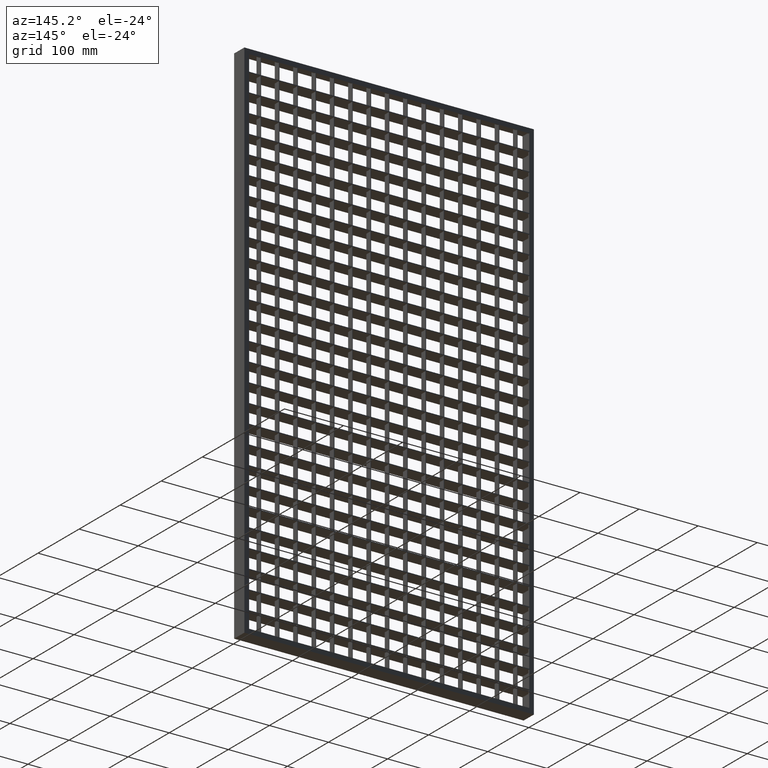
[diagram: clean part render]
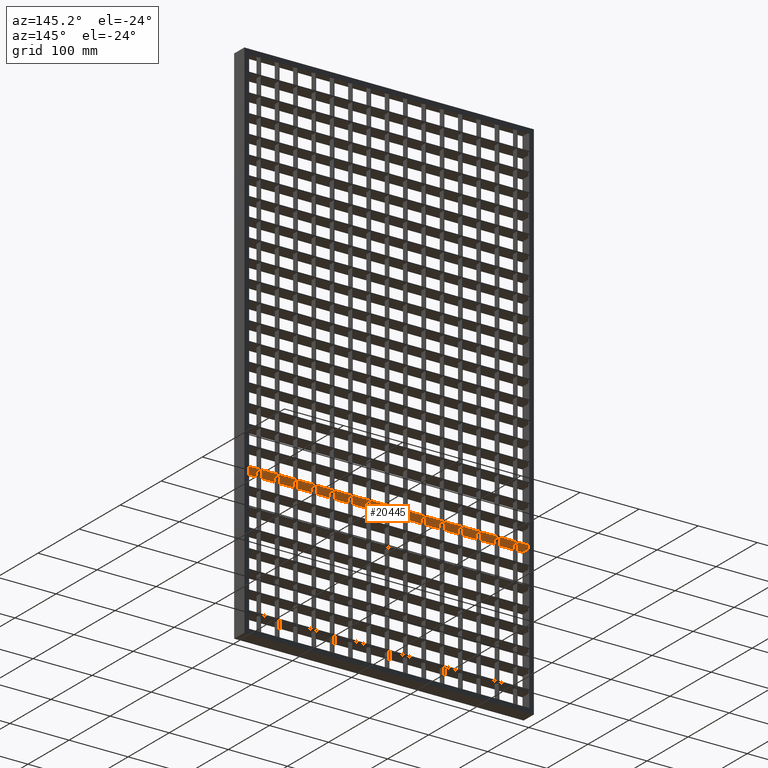
[diagram: same view with one face highlighted and labeled with its STEP entity id]
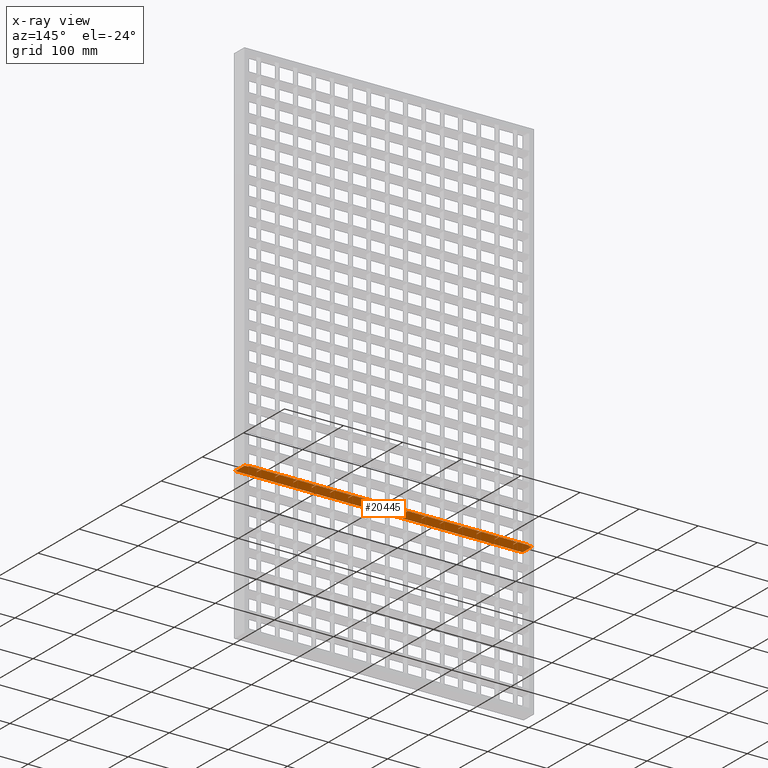
[diagram: x-ray of the same camera — body ghosted, the highlighted face saturated]
A machine part, auxiliary view. The second image highlights one B-rep face of the part: STEP entity #20445.
The next image is the same camera in x-ray: the body ghosted, the highlighted face saturated — about 0% of this face is hidden behind the body in this view.
In plain terms, the highlighted planar face has unit normal (0, 0, 1).
Its self-contained STEP definition (entity closure, byte-faithful):
#31 = ORIENTED_EDGE ( 'NONE', *, *, #40017, .T. ) ;
#145 = VERTEX_POINT ( 'NONE', #28036 ) ;
#261 = VECTOR ( 'NONE', #46870, 1000.000000000000000 ) ;
#339 = VECTOR ( 'NONE', #43882, 1000.000000000000000 ) ;
#489 = EDGE_CURVE ( 'NONE', #10559, #16109, #40078, .T. ) ;
#508 = CARTESIAN_POINT ( 'NONE',  ( 2.000000000000002700, 10.50000000000000500, -634.7499999999995500 ) ) ;
#586 = CARTESIAN_POINT ( 'NONE',  ( 58.50000000000000000, 2.500000000000000400, -634.7499999999995500 ) ) ;
#625 = VECTOR ( 'NONE', #13529, 1000.000000000000000 ) ;
#934 = LINE ( 'NONE', #62501, #4671 ) ;
#999 = VERTEX_POINT ( 'NONE', #28316 ) ;
#1050 = DIRECTION ( 'NONE',  ( -0.0000000000000000000, 1.000000000000000000, 0.0000000000000000000 ) ) ;
#1082 = CARTESIAN_POINT ( 'NONE',  ( 513.0449595727363900, 2.500000000000142600, -634.7499999999995500 ) ) ;
#1269 = CARTESIAN_POINT ( 'NONE',  ( 276.4999999999999400, 2.500000000000000900, -634.7499999999995500 ) ) ;
#1292 = CARTESIAN_POINT ( 'NONE',  ( 337.5000000000000000, 2.500000000000000400, -634.7499999999995500 ) ) ;
#1347 = FACE_OUTER_BOUND ( 'NONE', #18219, .T. ) ;
#1426 = DIRECTION ( 'NONE',  ( -1.000000000000000000, 4.336808689942013800E-016, 0.0000000000000000000 ) ) ;
#1573 = VERTEX_POINT ( 'NONE', #53525 ) ;
#1609 = LINE ( 'NONE', #26082, #10629 ) ;
#1724 = DIRECTION ( 'NONE',  ( 0.0000000000000000000, -1.000000000000000000, 0.0000000000000000000 ) ) ;
#1812 = CARTESIAN_POINT ( 'NONE',  ( 337.5000000000000000, 12.50000000000000000, -634.7499999999995500 ) ) ;
#1821 = VECTOR ( 'NONE', #58702, 1000.000000000000000 ) ;
#1916 = VERTEX_POINT ( 'NONE', #55414 ) ;
#2090 = VERTEX_POINT ( 'NONE', #9254 ) ;
#2302 = CARTESIAN_POINT ( 'NONE',  ( 59.50000000000000000, 2.500000000000000900, -634.7499999999995500 ) ) ;
#2389 = CARTESIAN_POINT ( 'NONE',  ( 120.5000000000000000, 12.50000000000003600, -634.7499999999995500 ) ) ;
#2700 = DIRECTION ( 'NONE',  ( 0.0000000000000000000, -1.000000000000000000, 0.0000000000000000000 ) ) ;
#2735 = VECTOR ( 'NONE', #23948, 1000.000000000000000 ) ;
#2771 = DIRECTION ( 'NONE',  ( 1.000000000000000000, 4.336808689942013800E-016, -0.0000000000000000000 ) ) ;
#2812 = EDGE_CURVE ( 'NONE', #61285, #7169, #42034, .T. ) ;
#2828 = VERTEX_POINT ( 'NONE', #33714 ) ;
#2969 = CARTESIAN_POINT ( 'NONE',  ( 513.0449595727363900, 2.500000000000116800, -634.7499999999995500 ) ) ;
#3082 = ORIENTED_EDGE ( 'NONE', *, *, #18359, .T. ) ;
#3400 = VERTEX_POINT ( 'NONE', #20003 ) ;
#3572 = VECTOR ( 'NONE', #9643, 1000.000000000000000 ) ;
#3797 = CARTESIAN_POINT ( 'NONE',  ( 368.5000000000000600, 12.50000000000000000, -634.7499999999995500 ) ) ;
#3834 = DIRECTION ( 'NONE',  ( -1.000000000000000000, -3.061616997868382600E-016, 0.0000000000000000000 ) ) ;
#3842 = CARTESIAN_POINT ( 'NONE',  ( 461.5000000000000000, 2.500000000000000400, -634.7499999999995500 ) ) ;
#3903 = VERTEX_POINT ( 'NONE', #39174 ) ;
#3993 = DIRECTION ( 'NONE',  ( -0.0000000000000000000, 1.000000000000000000, 0.0000000000000000000 ) ) ;
#4161 = DIRECTION ( 'NONE',  ( -0.0000000000000000000, 1.000000000000000000, 0.0000000000000000000 ) ) ;
#4193 = ORIENTED_EDGE ( 'NONE', *, *, #35667, .T. ) ;
#4349 = LINE ( 'NONE', #14969, #41371 ) ;
#4506 = CARTESIAN_POINT ( 'NONE',  ( 338.5000000000000000, 2.500000000000000000, -634.7499999999995500 ) ) ;
#4671 = VECTOR ( 'NONE', #4161, 1000.000000000000000 ) ;
#4676 = CARTESIAN_POINT ( 'NONE',  ( 488.0000000000000600, 10.50000000000000500, -634.7499999999995500 ) ) ;
#4735 = CARTESIAN_POINT ( 'NONE',  ( 513.0449595727363900, 12.50000000000015500, -634.7499999999995500 ) ) ;
#4770 = CARTESIAN_POINT ( 'NONE',  ( 430.5000000000000000, 2.500000000000000400, -634.7499999999995500 ) ) ;
#5234 = VECTOR ( 'NONE', #18970, 1000.000000000000000 ) ;
#5411 = DIRECTION ( 'NONE',  ( 0.0000000000000000000, -1.000000000000000000, 0.0000000000000000000 ) ) ;
#5534 = CARTESIAN_POINT ( 'NONE',  ( 482.0000000000001100, 10.50000000000036400, -634.7499999999995500 ) ) ;
#5599 = CARTESIAN_POINT ( 'NONE',  ( 368.5000000000000600, -12.49999999999984500, -634.7499999999995500 ) ) ;
#5625 = CARTESIAN_POINT ( 'NONE',  ( 244.5000000000000000, 12.50000000000007300, -634.7499999999995500 ) ) ;
#5653 = LINE ( 'NONE', #24143, #21525 ) ;
#5667 = VERTEX_POINT ( 'NONE', #14138 ) ;
#6097 = DIRECTION ( 'NONE',  ( 1.000000000000000000, 4.336808689942013800E-016, -0.0000000000000000000 ) ) ;
#6332 = VECTOR ( 'NONE', #54608, 1000.000000000000000 ) ;
#6730 = ORIENTED_EDGE ( 'NONE', *, *, #489, .F. ) ;
#6783 = CARTESIAN_POINT ( 'NONE',  ( 275.4999999999999400, -12.49999999999984500, -634.7499999999995500 ) ) ;
#6804 = VECTOR ( 'NONE', #34782, 1000.000000000000000 ) ;
#6838 = LINE ( 'NONE', #47088, #21173 ) ;
#7063 = LINE ( 'NONE', #49556, #1821 ) ;
#7104 = CARTESIAN_POINT ( 'NONE',  ( 488.0000000000000600, -12.49999999999984500, -634.7499999999995500 ) ) ;
#7169 = VERTEX_POINT ( 'NONE', #11757 ) ;
#7326 = ORIENTED_EDGE ( 'NONE', *, *, #37991, .F. ) ;
#7350 = EDGE_CURVE ( 'NONE', #11879, #9787, #17790, .T. ) ;
#7415 = CARTESIAN_POINT ( 'NONE',  ( 461.5000000000000000, -12.49999999999984500, -634.7499999999995500 ) ) ;
#7461 = LINE ( 'NONE', #35555, #52842 ) ;
#7640 = CARTESIAN_POINT ( 'NONE',  ( 307.5000000000000000, -12.49999999999984500, -634.7499999999995500 ) ) ;
#7963 = VERTEX_POINT ( 'NONE', #13502 ) ;
#8011 = CARTESIAN_POINT ( 'NONE',  ( 7.999999999999992900, 10.50000000000000500, -634.7499999999995500 ) ) ;
#8394 = VECTOR ( 'NONE', #57365, 1000.000000000000000 ) ;
#8484 = LINE ( 'NONE', #36030, #50132 ) ;
#8504 = VERTEX_POINT ( 'NONE', #14287 ) ;
#8583 = VERTEX_POINT ( 'NONE', #28876 ) ;
#8961 = VECTOR ( 'NONE', #10696, 1000.000000000000000 ) ;
#8995 = VERTEX_POINT ( 'NONE', #51679 ) ;
#9001 = LINE ( 'NONE', #7415, #20356 ) ;
#9040 = ORIENTED_EDGE ( 'NONE', *, *, #27590, .F. ) ;
#9061 = ORIENTED_EDGE ( 'NONE', *, *, #60447, .T. ) ;
#9120 = ORIENTED_EDGE ( 'NONE', *, *, #9369, .T. ) ;
#9253 = CARTESIAN_POINT ( 'NONE',  ( 8.000000000000007100, 12.50000000000000000, -634.7499999999995500 ) ) ;
#9254 = CARTESIAN_POINT ( 'NONE',  ( 28.49999999999999600, 12.50000000000000000, -634.7499999999995500 ) ) ;
#9369 = EDGE_CURVE ( 'NONE', #55712, #11879, #7461, .T. ) ;
#9537 = VERTEX_POINT ( 'NONE', #12255 ) ;
#9580 = VECTOR ( 'NONE', #47785, 1000.000000000000000 ) ;
#9584 = LINE ( 'NONE', #53015, #3572 ) ;
#9641 = DIRECTION ( 'NONE',  ( -0.0000000000000000000, 1.000000000000000000, 0.0000000000000000000 ) ) ;
#9642 = CARTESIAN_POINT ( 'NONE',  ( 7.999999999999992900, 10.50000000000000500, -634.7499999999995500 ) ) ;
#9643 = DIRECTION ( 'NONE',  ( -0.0000000000000000000, 1.000000000000000000, 0.0000000000000000000 ) ) ;
#9648 = LINE ( 'NONE', #15683, #17986 ) ;
#9679 = DIRECTION ( 'NONE',  ( 0.0000000000000000000, -1.000000000000000000, 0.0000000000000000000 ) ) ;
#9787 = VERTEX_POINT ( 'NONE', #57312 ) ;
#9804 = LINE ( 'NONE', #29463, #20443 ) ;
#9815 = EDGE_CURVE ( 'NONE', #54161, #61476, #16493, .T. ) ;
#10030 = EDGE_CURVE ( 'NONE', #17282, #35063, #33845, .T. ) ;
#10074 = ORIENTED_EDGE ( 'NONE', *, *, #30193, .F. ) ;
#10096 = CARTESIAN_POINT ( 'NONE',  ( 245.0000000000000000, 10.50000000000000500, -634.7499999999995500 ) ) ;
#10099 = VERTEX_POINT ( 'NONE', #31359 ) ;
#10559 = VERTEX_POINT ( 'NONE', #58613 ) ;
#10629 = VECTOR ( 'NONE', #1426, 1000.000000000000000 ) ;
#10696 = DIRECTION ( 'NONE',  ( 1.000000000000000000, 4.336808689942013800E-016, -0.0000000000000000000 ) ) ;
#10781 = EDGE_CURVE ( 'NONE', #42310, #46450, #47376, .T. ) ;
#10828 = EDGE_CURVE ( 'NONE', #1573, #9537, #28383, .T. ) ;
#10944 = LINE ( 'NONE', #38712, #29877 ) ;
#11063 = CARTESIAN_POINT ( 'NONE',  ( 244.5000000000000000, 2.500000000000000400, -634.7499999999995500 ) ) ;
#11081 = CARTESIAN_POINT ( 'NONE',  ( 152.5000000000000000, 2.500000000000000900, -634.7499999999995500 ) ) ;
#11331 = VECTOR ( 'NONE', #6097, 1000.000000000000000 ) ;
#11373 = EDGE_CURVE ( 'NONE', #43348, #36523, #56315, .T. ) ;
#11390 = LINE ( 'NONE', #1082, #11331 ) ;
#11443 = CARTESIAN_POINT ( 'NONE',  ( 182.5000000000000000, -12.49999999999984500, -634.7499999999995500 ) ) ;
#11590 = DIRECTION ( 'NONE',  ( -0.0000000000000000000, 1.000000000000000000, 0.0000000000000000000 ) ) ;
#11757 = CARTESIAN_POINT ( 'NONE',  ( 213.5000000000000000, 2.500000000000000400, -634.7499999999995500 ) ) ;
#11796 = DIRECTION ( 'NONE',  ( -1.000000000000000000, 4.336808689942013800E-016, 0.0000000000000000000 ) ) ;
#11809 = CARTESIAN_POINT ( 'NONE',  ( 513.0449595727363900, 12.50000000000015500, -634.7499999999995500 ) ) ;
#11879 = VERTEX_POINT ( 'NONE', #24809 ) ;
#12045 = DIRECTION ( 'NONE',  ( -1.000000000000000000, -3.061616997868382600E-016, 0.0000000000000000000 ) ) ;
#12255 = CARTESIAN_POINT ( 'NONE',  ( 275.4999999999999400, 12.50000000000000000, -634.7499999999995500 ) ) ;
#12422 = ORIENTED_EDGE ( 'NONE', *, *, #36406, .F. ) ;
#12481 = DIRECTION ( 'NONE',  ( 0.0000000000000000000, -1.000000000000000000, 0.0000000000000000000 ) ) ;
#12568 = ORIENTED_EDGE ( 'NONE', *, *, #37404, .F. ) ;
#12662 = CARTESIAN_POINT ( 'NONE',  ( 431.5000000000000000, 2.499999999999999600, -634.7499999999995500 ) ) ;
#12782 = ORIENTED_EDGE ( 'NONE', *, *, #29794, .T. ) ;
#12806 = CARTESIAN_POINT ( 'NONE',  ( 121.5000000000000000, 2.500000000000000900, -634.7499999999995500 ) ) ;
#13438 = VERTEX_POINT ( 'NONE', #48966 ) ;
#13452 = AXIS2_PLACEMENT_3D ( 'NONE', #29767, #15796, #20252 ) ;
#13502 = CARTESIAN_POINT ( 'NONE',  ( 369.5000000000000600, 12.50000000000011200, -634.7499999999995500 ) ) ;
#13529 = DIRECTION ( 'NONE',  ( -1.000000000000000000, -3.061616997868382600E-016, 0.0000000000000000000 ) ) ;
#13564 = CARTESIAN_POINT ( 'NONE',  ( 337.5000000000000000, -12.49999999999984500, -634.7499999999995500 ) ) ;
#13606 = ORIENTED_EDGE ( 'NONE', *, *, #14506, .F. ) ;
#13724 = DIRECTION ( 'NONE',  ( -0.0000000000000000000, 1.000000000000000000, 0.0000000000000000000 ) ) ;
#13759 = ORIENTED_EDGE ( 'NONE', *, *, #17304, .T. ) ;
#13768 = EDGE_CURVE ( 'NONE', #36519, #1573, #36044, .T. ) ;
#13796 = LINE ( 'NONE', #33399, #50898 ) ;
#14113 = LINE ( 'NONE', #19103, #27776 ) ;
#14138 = CARTESIAN_POINT ( 'NONE',  ( 399.4999999999999400, 12.50000000000000000, -634.7499999999995500 ) ) ;
#14287 = CARTESIAN_POINT ( 'NONE',  ( 58.49999999999994300, 12.50000000000001600, -634.7499999999995500 ) ) ;
#14298 = CARTESIAN_POINT ( 'NONE',  ( 121.5000000000000000, -12.49999999999984500, -634.7499999999995500 ) ) ;
#14351 = CARTESIAN_POINT ( 'NONE',  ( 306.5000000000000000, 2.500000000000000400, -634.7499999999995500 ) ) ;
#14366 = ORIENTED_EDGE ( 'NONE', *, *, #20376, .T. ) ;
#14506 = EDGE_CURVE ( 'NONE', #31911, #3400, #17096, .T. ) ;
#14610 = VERTEX_POINT ( 'NONE', #3842 ) ;
#14628 = ORIENTED_EDGE ( 'NONE', *, *, #56079, .F. ) ;
#14652 = VECTOR ( 'NONE', #61271, 1000.000000000000000 ) ;
#14876 = DIRECTION ( 'NONE',  ( -1.000000000000000000, -3.061616997868382600E-016, 0.0000000000000000000 ) ) ;
#14969 = CARTESIAN_POINT ( 'NONE',  ( 513.0449595727363900, 2.500000000000130600, -634.7499999999995500 ) ) ;
#15016 = EDGE_CURVE ( 'NONE', #48163, #31911, #53290, .T. ) ;
#15079 = CARTESIAN_POINT ( 'NONE',  ( 513.0449595727363900, 12.50000000000015500, -634.7499999999995500 ) ) ;
#15435 = VECTOR ( 'NONE', #20636, 1000.000000000000000 ) ;
#15498 = CARTESIAN_POINT ( 'NONE',  ( 182.4999999999999400, 12.50000000000005500, -634.7499999999995500 ) ) ;
#15592 = PLANE ( 'NONE',  #13452 ) ;
#15683 = CARTESIAN_POINT ( 'NONE',  ( 513.0449595727363900, 12.50000000000015500, -634.7499999999995500 ) ) ;
#15796 = DIRECTION ( 'NONE',  ( 0.0000000000000000000, 0.0000000000000000000, 1.000000000000000000 ) ) ;
#15948 = LINE ( 'NONE', #38105, #53041 ) ;
#16048 = ORIENTED_EDGE ( 'NONE', *, *, #18338, .F. ) ;
#16109 = VERTEX_POINT ( 'NONE', #3797 ) ;
#16339 = DIRECTION ( 'NONE',  ( 0.0000000000000000000, -1.000000000000000000, 0.0000000000000000000 ) ) ;
#16493 = LINE ( 'NONE', #52545, #26313 ) ;
#16554 = LINE ( 'NONE', #60906, #31672 ) ;
#16841 = EDGE_CURVE ( 'NONE', #33281, #17282, #15948, .T. ) ;
#16852 = VECTOR ( 'NONE', #3834, 1000.000000000000000 ) ;
#17096 = LINE ( 'NONE', #7640, #41270 ) ;
#17282 = VERTEX_POINT ( 'NONE', #46883 ) ;
#17304 = EDGE_CURVE ( 'NONE', #50982, #1916, #6838, .T. ) ;
#17429 = EDGE_CURVE ( 'NONE', #59658, #57074, #40835, .T. ) ;
#17471 = ORIENTED_EDGE ( 'NONE', *, *, #42661, .F. ) ;
#17478 = CARTESIAN_POINT ( 'NONE',  ( 90.50000000000002800, -12.49999999999984500, -634.7499999999995500 ) ) ;
#17529 = ORIENTED_EDGE ( 'NONE', *, *, #15016, .F. ) ;
#17644 = ORIENTED_EDGE ( 'NONE', *, *, #30088, .F. ) ;
#17790 = LINE ( 'NONE', #17478, #14652 ) ;
#17986 = VECTOR ( 'NONE', #22225, 1000.000000000000000 ) ;
#18042 = EDGE_CURVE ( 'NONE', #3903, #10559, #49840, .T. ) ;
#18219 = EDGE_LOOP ( 'NONE', ( #56499, #30978, #42641, #9040, #48093, #18498, #24313, #17644, #7326, #31752, #58393, #21274, #9061, #62237, #23387, #39821, #41926, #20284, #3082, #9120, #48216, #12568, #39935, #59863, #55146, #55916, #12782, #4193, #13759, #50837, #39122, #32604, #20552, #10074, #48702, #14366, #18993, #17471, #55862, #31, #34541, #50352, #46007, #22983, #45942, #57943, #51317, #21551, #13606, #17529, #50120, #52657, #22046, #33547, #6730, #36761, #22280, #14628, #47487, #42473, #38557, #24559, #25507, #24546, #12422, #16048, #55057, #37743 ) ) ;
#18338 = EDGE_CURVE ( 'NONE', #39565, #51906, #9648, .T. ) ;
#18359 = EDGE_CURVE ( 'NONE', #42310, #55712, #55871, .T. ) ;
#18385 = CARTESIAN_POINT ( 'NONE',  ( 2.000000000000002700, -12.50000000000000000, -634.7499999999995500 ) ) ;
#18497 = EDGE_CURVE ( 'NONE', #57711, #10099, #61862, .T. ) ;
#18498 = ORIENTED_EDGE ( 'NONE', *, *, #18497, .T. ) ;
#18555 = LINE ( 'NONE', #54076, #54848 ) ;
#18556 = VECTOR ( 'NONE', #11590, 1000.000000000000000 ) ;
#18644 = VECTOR ( 'NONE', #2700, 1000.000000000000000 ) ;
#18897 = CARTESIAN_POINT ( 'NONE',  ( 513.0449595727363900, 2.499999999999937800, -634.7499999999995500 ) ) ;
#18925 = DIRECTION ( 'NONE',  ( -1.000000000000000000, 4.336808689942013800E-016, 0.0000000000000000000 ) ) ;
#18940 = VECTOR ( 'NONE', #43367, 1000.000000000000000 ) ;
#18970 = DIRECTION ( 'NONE',  ( -1.000000000000000000, -3.061616997868382600E-016, 0.0000000000000000000 ) ) ;
#18993 = ORIENTED_EDGE ( 'NONE', *, *, #51115, .T. ) ;
#19103 = CARTESIAN_POINT ( 'NONE',  ( 513.0449595727363900, 12.50000000000015500, -634.7499999999995500 ) ) ;
#19204 = CARTESIAN_POINT ( 'NONE',  ( 400.4999999999999400, 12.50000000000012100, -634.7499999999995500 ) ) ;
#19229 = VERTEX_POINT ( 'NONE', #34236 ) ;
#19348 = VECTOR ( 'NONE', #29248, 1000.000000000000000 ) ;
#19546 = VECTOR ( 'NONE', #55294, 1000.000000000000000 ) ;
#19738 = LINE ( 'NONE', #38676, #46210 ) ;
#20003 = CARTESIAN_POINT ( 'NONE',  ( 307.5000000000000000, 2.499999999999999600, -634.7499999999995500 ) ) ;
#20200 = EDGE_CURVE ( 'NONE', #999, #10099, #53470, .T. ) ;
#20252 = DIRECTION ( 'NONE',  ( 1.000000000000000000, 0.0000000000000000000, -0.0000000000000000000 ) ) ;
#20257 = EDGE_CURVE ( 'NONE', #7963, #3903, #27011, .T. ) ;
#20284 = ORIENTED_EDGE ( 'NONE', *, *, #10781, .F. ) ;
#20296 = VECTOR ( 'NONE', #21506, 1000.000000000000000 ) ;
#20356 = VECTOR ( 'NONE', #60097, 1000.000000000000000 ) ;
#20366 = LINE ( 'NONE', #2969, #32504 ) ;
#20376 = EDGE_CURVE ( 'NONE', #7169, #145, #4349, .T. ) ;
#20443 = VECTOR ( 'NONE', #53594, 1000.000000000000000 ) ;
#20445 = ADVANCED_FACE ( 'NONE', ( #1347 ), #15592, .F. ) ;
#20456 = VERTEX_POINT ( 'NONE', #1292 ) ;
#20552 = ORIENTED_EDGE ( 'NONE', *, *, #42603, .T. ) ;
#20636 = DIRECTION ( 'NONE',  ( 1.000000000000000000, 4.336808689942013800E-016, -0.0000000000000000000 ) ) ;
#20730 = DIRECTION ( 'NONE',  ( -8.673617379884034500E-016, 1.000000000000000000, 0.0000000000000000000 ) ) ;
#20766 = VECTOR ( 'NONE', #58035, 1000.000000000000000 ) ;
#21173 = VECTOR ( 'NONE', #3993, 1000.000000000000000 ) ;
#21274 = ORIENTED_EDGE ( 'NONE', *, *, #36422, .T. ) ;
#21361 = CARTESIAN_POINT ( 'NONE',  ( 513.0449595727363900, 12.50000000000015500, -634.7499999999995500 ) ) ;
#21490 = DIRECTION ( 'NONE',  ( 0.0000000000000000000, -1.000000000000000000, 0.0000000000000000000 ) ) ;
#21506 = DIRECTION ( 'NONE',  ( -0.0000000000000000000, 1.000000000000000000, 0.0000000000000000000 ) ) ;
#21525 = VECTOR ( 'NONE', #34496, 1000.000000000000000 ) ;
#21551 = ORIENTED_EDGE ( 'NONE', *, *, #27671, .F. ) ;
#21683 = EDGE_CURVE ( 'NONE', #28943, #14610, #58594, .T. ) ;
#21919 = CARTESIAN_POINT ( 'NONE',  ( 59.50000000000000000, 12.50000000000000000, -634.7499999999995500 ) ) ;
#22046 = ORIENTED_EDGE ( 'NONE', *, *, #51428, .F. ) ;
#22141 = EDGE_CURVE ( 'NONE', #28029, #36217, #7063, .T. ) ;
#22225 = DIRECTION ( 'NONE',  ( -1.000000000000000000, -3.061616997868382600E-016, 0.0000000000000000000 ) ) ;
#22257 = EDGE_CURVE ( 'NONE', #57933, #46922, #8484, .T. ) ;
#22280 = ORIENTED_EDGE ( 'NONE', *, *, #20257, .F. ) ;
#22773 = EDGE_CURVE ( 'NONE', #29306, #46577, #26592, .T. ) ;
#22983 = ORIENTED_EDGE ( 'NONE', *, *, #13768, .F. ) ;
#23296 = VECTOR ( 'NONE', #5411, 1000.000000000000000 ) ;
#23351 = CARTESIAN_POINT ( 'NONE',  ( 27.49999999999996800, -12.49999999999984500, -634.7499999999995500 ) ) ;
#23387 = ORIENTED_EDGE ( 'NONE', *, *, #37653, .T. ) ;
#23400 = EDGE_CURVE ( 'NONE', #19229, #28469, #11390, .T. ) ;
#23685 = CARTESIAN_POINT ( 'NONE',  ( 513.0449595727363900, 12.50000000000015500, -634.7499999999995500 ) ) ;
#23776 = VECTOR ( 'NONE', #58316, 1000.000000000000000 ) ;
#23948 = DIRECTION ( 'NONE',  ( -1.000000000000000000, 0.0000000000000000000, 0.0000000000000000000 ) ) ;
#24138 = VECTOR ( 'NONE', #48601, 1000.000000000000000 ) ;
#24143 = CARTESIAN_POINT ( 'NONE',  ( 513.0449595727363900, 12.50000000000015500, -634.7499999999995500 ) ) ;
#24313 = ORIENTED_EDGE ( 'NONE', *, *, #20200, .F. ) ;
#24441 = CARTESIAN_POINT ( 'NONE',  ( 513.0449595727363900, 12.50000000000015500, -634.7499999999995500 ) ) ;
#24546 = ORIENTED_EDGE ( 'NONE', *, *, #41873, .F. ) ;
#24559 = ORIENTED_EDGE ( 'NONE', *, *, #10030, .F. ) ;
#24595 = EDGE_CURVE ( 'NONE', #38464, #49715, #54315, .T. ) ;
#24809 = CARTESIAN_POINT ( 'NONE',  ( 90.50000000000000000, 2.500000000000000900, -634.7499999999995500 ) ) ;
#24889 = VERTEX_POINT ( 'NONE', #12662 ) ;
#25032 = CARTESIAN_POINT ( 'NONE',  ( 400.4999999999999400, 2.500000000000000900, -634.7499999999995500 ) ) ;
#25507 = ORIENTED_EDGE ( 'NONE', *, *, #16841, .F. ) ;
#26034 = CARTESIAN_POINT ( 'NONE',  ( 513.0449595727363900, 2.499999999999977800, -634.7499999999995500 ) ) ;
#26082 = CARTESIAN_POINT ( 'NONE',  ( 513.0449595727363900, 2.499999999999924100, -634.7499999999995500 ) ) ;
#26313 = VECTOR ( 'NONE', #18925, 1000.000000000000000 ) ;
#26528 = CARTESIAN_POINT ( 'NONE',  ( 488.0000000000000600, -12.50000000000000000, -634.7499999999996600 ) ) ;
#26592 = LINE ( 'NONE', #21361, #50819 ) ;
#26629 = DIRECTION ( 'NONE',  ( -1.000000000000000000, -3.061616997868382600E-016, 0.0000000000000000000 ) ) ;
#26801 = VECTOR ( 'NONE', #1724, 1000.000000000000000 ) ;
#27011 = LINE ( 'NONE', #62167, #48904 ) ;
#27404 = VERTEX_POINT ( 'NONE', #4676 ) ;
#27590 = EDGE_CURVE ( 'NONE', #27404, #38464, #61235, .T. ) ;
#27602 = LINE ( 'NONE', #508, #2735 ) ;
#27671 = EDGE_CURVE ( 'NONE', #3400, #52303, #16554, .T. ) ;
#27776 = VECTOR ( 'NONE', #43388, 1000.000000000000000 ) ;
#27916 = LINE ( 'NONE', #44955, #39267 ) ;
#28029 = VERTEX_POINT ( 'NONE', #32695 ) ;
#28036 = CARTESIAN_POINT ( 'NONE',  ( 214.5000000000000000, 2.500000000000000900, -634.7499999999995500 ) ) ;
#28121 = DIRECTION ( 'NONE',  ( 0.0000000000000000000, -1.000000000000000000, 0.0000000000000000000 ) ) ;
#28316 = CARTESIAN_POINT ( 'NONE',  ( 2.000000000000002700, 10.50000000000000500, -634.7499999999995500 ) ) ;
#28383 = LINE ( 'NONE', #6783, #18556 ) ;
#28410 = DIRECTION ( 'NONE',  ( -1.000000000000000000, 4.336808689942013800E-016, 0.0000000000000000000 ) ) ;
#28464 = LINE ( 'NONE', #46392, #18644 ) ;
#28469 = VERTEX_POINT ( 'NONE', #40673 ) ;
#28580 = CARTESIAN_POINT ( 'NONE',  ( 482.0000000000000600, 12.50000000000000500, -634.7499999999995500 ) ) ;
#28876 = CARTESIAN_POINT ( 'NONE',  ( 462.5000000000000000, 12.50000000000014000, -634.7499999999995500 ) ) ;
#28943 = VERTEX_POINT ( 'NONE', #53674 ) ;
#29248 = DIRECTION ( 'NONE',  ( 0.0000000000000000000, -1.000000000000000000, 0.0000000000000000000 ) ) ;
#29306 = VERTEX_POINT ( 'NONE', #37998 ) ;
#29394 = LINE ( 'NONE', #41837, #51383 ) ;
#29463 = CARTESIAN_POINT ( 'NONE',  ( 513.0449595727363900, 2.500000000000156800, -634.7499999999995500 ) ) ;
#29767 = CARTESIAN_POINT ( 'NONE',  ( 513.0449595727363900, -12.49999999999984500, -634.7499999999995500 ) ) ;
#29794 = EDGE_CURVE ( 'NONE', #38003, #54673, #57975, .T. ) ;
#29845 = CARTESIAN_POINT ( 'NONE',  ( 151.5000000000000000, 2.500000000000000400, -634.7499999999995500 ) ) ;
#29877 = VECTOR ( 'NONE', #39131, 1000.000000000000000 ) ;
#30088 = EDGE_CURVE ( 'NONE', #38809, #999, #27602, .T. ) ;
#30093 = VECTOR ( 'NONE', #12481, 1000.000000000000000 ) ;
#30193 = EDGE_CURVE ( 'NONE', #61285, #2828, #5653, .T. ) ;
#30884 = VECTOR ( 'NONE', #61237, 1000.000000000000000 ) ;
#30978 = ORIENTED_EDGE ( 'NONE', *, *, #59701, .F. ) ;
#31092 = EDGE_CURVE ( 'NONE', #9537, #46625, #59678, .T. ) ;
#31359 = CARTESIAN_POINT ( 'NONE',  ( 2.000000000000001800, -12.50000000000000200, -634.7499999999995500 ) ) ;
#31495 = CARTESIAN_POINT ( 'NONE',  ( 513.0449595727363900, 12.50000000000015500, -634.7499999999995500 ) ) ;
#31616 = CARTESIAN_POINT ( 'NONE',  ( 513.0449595727363900, 2.499999999999898300, -634.7499999999995500 ) ) ;
#31672 = VECTOR ( 'NONE', #11796, 1000.000000000000000 ) ;
#31752 = ORIENTED_EDGE ( 'NONE', *, *, #22141, .F. ) ;
#31813 = VERTEX_POINT ( 'NONE', #4506 ) ;
#31823 = DIRECTION ( 'NONE',  ( -1.000000000000000000, 4.336808689942013800E-016, 0.0000000000000000000 ) ) ;
#31911 = VERTEX_POINT ( 'NONE', #39142 ) ;
#32358 = CARTESIAN_POINT ( 'NONE',  ( 431.5000000000000000, 12.50000000000013100, -634.7499999999995500 ) ) ;
#32504 = VECTOR ( 'NONE', #2771, 1000.000000000000000 ) ;
#32604 = ORIENTED_EDGE ( 'NONE', *, *, #23400, .T. ) ;
#32668 = EDGE_CURVE ( 'NONE', #36523, #46450, #18555, .T. ) ;
#32695 = CARTESIAN_POINT ( 'NONE',  ( 27.49999999999996800, 12.50000000000000500, -634.7499999999995500 ) ) ;
#33216 = DIRECTION ( 'NONE',  ( -0.0000000000000000000, 1.000000000000000000, 0.0000000000000000000 ) ) ;
#33281 = VERTEX_POINT ( 'NONE', #4770 ) ;
#33399 = CARTESIAN_POINT ( 'NONE',  ( 183.5000000000000000, -12.49999999999984500, -634.7499999999995500 ) ) ;
#33547 = ORIENTED_EDGE ( 'NONE', *, *, #38099, .F. ) ;
#33561 = CARTESIAN_POINT ( 'NONE',  ( 399.4999999999999400, 2.500000000000000400, -634.7499999999995500 ) ) ;
#33714 = CARTESIAN_POINT ( 'NONE',  ( 183.5000000000000000, 12.50000000000000000, -634.7499999999995500 ) ) ;
#33845 = LINE ( 'NONE', #15079, #53507 ) ;
#34236 = CARTESIAN_POINT ( 'NONE',  ( 182.5000000000000000, 2.500000000000000400, -634.7499999999995500 ) ) ;
#34496 = DIRECTION ( 'NONE',  ( -1.000000000000000000, -3.061616997868382600E-016, 0.0000000000000000000 ) ) ;
#34541 = ORIENTED_EDGE ( 'NONE', *, *, #48959, .T. ) ;
#34782 = DIRECTION ( 'NONE',  ( -0.0000000000000000000, 1.000000000000000000, 0.0000000000000000000 ) ) ;
#34841 = LINE ( 'NONE', #45299, #46117 ) ;
#34864 = VERTEX_POINT ( 'NONE', #2389 ) ;
#35063 = VERTEX_POINT ( 'NONE', #19204 ) ;
#35105 = LINE ( 'NONE', #43313, #45642 ) ;
#35465 = VERTEX_POINT ( 'NONE', #41756 ) ;
#35555 = CARTESIAN_POINT ( 'NONE',  ( 513.0449595727363900, 2.500000000000184300, -634.7499999999995500 ) ) ;
#35667 = EDGE_CURVE ( 'NONE', #54673, #50982, #9804, .T. ) ;
#35712 = DIRECTION ( 'NONE',  ( -0.0000000000000000000, 1.000000000000000000, 0.0000000000000000000 ) ) ;
#35723 = CARTESIAN_POINT ( 'NONE',  ( 58.50000000000000000, -12.49999999999984500, -634.7499999999995500 ) ) ;
#35831 = CARTESIAN_POINT ( 'NONE',  ( 214.5000000000000300, -12.49999999999984500, -634.7499999999995500 ) ) ;
#35861 = EDGE_CURVE ( 'NONE', #8504, #2090, #34841, .T. ) ;
#35912 = CARTESIAN_POINT ( 'NONE',  ( 306.5000000000000000, -12.49999999999984500, -634.7499999999995500 ) ) ;
#36030 = CARTESIAN_POINT ( 'NONE',  ( 244.5000000000000000, -12.49999999999984500, -634.7499999999995500 ) ) ;
#36044 = LINE ( 'NONE', #31616, #53388 ) ;
#36216 = CARTESIAN_POINT ( 'NONE',  ( 89.50000000000002800, -12.49999999999984500, -634.7499999999995500 ) ) ;
#36217 = VERTEX_POINT ( 'NONE', #9253 ) ;
#36257 = LINE ( 'NONE', #40510, #8961 ) ;
#36260 = DIRECTION ( 'NONE',  ( 0.0000000000000000000, -1.000000000000000000, 0.0000000000000000000 ) ) ;
#36308 = EDGE_CURVE ( 'NONE', #35063, #54161, #43779, .T. ) ;
#36406 = EDGE_CURVE ( 'NONE', #51906, #24889, #27916, .T. ) ;
#36422 = EDGE_CURVE ( 'NONE', #52613, #55359, #36257, .T. ) ;
#36519 = VERTEX_POINT ( 'NONE', #1269 ) ;
#36523 = VERTEX_POINT ( 'NONE', #2302 ) ;
#36539 = LINE ( 'NONE', #23685, #16852 ) ;
#36703 = LINE ( 'NONE', #23351, #20766 ) ;
#36761 = ORIENTED_EDGE ( 'NONE', *, *, #18042, .F. ) ;
#36800 = DIRECTION ( 'NONE',  ( -1.000000000000000000, -3.061616997868382600E-016, 0.0000000000000000000 ) ) ;
#37404 = EDGE_CURVE ( 'NONE', #34864, #9787, #10944, .T. ) ;
#37653 = EDGE_CURVE ( 'NONE', #8504, #43348, #61637, .T. ) ;
#37743 = ORIENTED_EDGE ( 'NONE', *, *, #21683, .F. ) ;
#37816 = LINE ( 'NONE', #11443, #53688 ) ;
#37991 = EDGE_CURVE ( 'NONE', #36217, #38809, #41892, .T. ) ;
#37998 = CARTESIAN_POINT ( 'NONE',  ( 306.5000000000000000, 12.50000000000000000, -634.7499999999995500 ) ) ;
#38003 = VERTEX_POINT ( 'NONE', #44100 ) ;
#38099 = EDGE_CURVE ( 'NONE', #16109, #8995, #57038, .T. ) ;
#38105 = CARTESIAN_POINT ( 'NONE',  ( 430.5000000000000000, -12.49999999999984500, -634.7499999999995500 ) ) ;
#38464 = VERTEX_POINT ( 'NONE', #61630 ) ;
#38557 = ORIENTED_EDGE ( 'NONE', *, *, #36308, .F. ) ;
#38676 = CARTESIAN_POINT ( 'NONE',  ( 338.5000000000000000, -12.49999999999984500, -634.7499999999995500 ) ) ;
#38712 = CARTESIAN_POINT ( 'NONE',  ( 513.0449595727363900, 12.50000000000015500, -634.7499999999995500 ) ) ;
#38809 = VERTEX_POINT ( 'NONE', #8011 ) ;
#39122 = ORIENTED_EDGE ( 'NONE', *, *, #39948, .T. ) ;
#39131 = DIRECTION ( 'NONE',  ( -1.000000000000000000, -3.061616997868382600E-016, 0.0000000000000000000 ) ) ;
#39142 = CARTESIAN_POINT ( 'NONE',  ( 307.5000000000000000, 12.50000000000009200, -634.7499999999995500 ) ) ;
#39174 = CARTESIAN_POINT ( 'NONE',  ( 369.5000000000000600, 2.500000000000000400, -634.7499999999995500 ) ) ;
#39267 = VECTOR ( 'NONE', #49834, 1000.000000000000000 ) ;
#39565 = VERTEX_POINT ( 'NONE', #43608 ) ;
#39821 = ORIENTED_EDGE ( 'NONE', *, *, #11373, .T. ) ;
#39883 = CARTESIAN_POINT ( 'NONE',  ( 513.0449595727363900, 2.500000000000196300, -634.7499999999995500 ) ) ;
#39908 = VECTOR ( 'NONE', #20730, 1000.000000000000000 ) ;
#39935 = ORIENTED_EDGE ( 'NONE', *, *, #41542, .T. ) ;
#39948 = EDGE_CURVE ( 'NONE', #48034, #19229, #37816, .T. ) ;
#40017 = EDGE_CURVE ( 'NONE', #46922, #53319, #20366, .T. ) ;
#40078 = LINE ( 'NONE', #5599, #6804 ) ;
#40199 = EDGE_CURVE ( 'NONE', #38003, #57074, #41528, .T. ) ;
#40510 = CARTESIAN_POINT ( 'NONE',  ( 513.0449595727363900, 2.500000000000210500, -634.7499999999995500 ) ) ;
#40673 = CARTESIAN_POINT ( 'NONE',  ( 183.5000000000000000, 2.500000000000000900, -634.7499999999995500 ) ) ;
#40803 = EDGE_CURVE ( 'NONE', #28029, #52613, #36703, .T. ) ;
#40835 = LINE ( 'NONE', #14298, #52932 ) ;
#41270 = VECTOR ( 'NONE', #41650, 1000.000000000000000 ) ;
#41371 = VECTOR ( 'NONE', #53054, 1000.000000000000000 ) ;
#41528 = LINE ( 'NONE', #52383, #5234 ) ;
#41542 = EDGE_CURVE ( 'NONE', #34864, #35465, #35105, .T. ) ;
#41650 = DIRECTION ( 'NONE',  ( 0.0000000000000000000, -1.000000000000000000, 0.0000000000000000000 ) ) ;
#41756 = CARTESIAN_POINT ( 'NONE',  ( 120.5000000000000000, 2.500000000000000400, -634.7499999999995500 ) ) ;
#41809 = CARTESIAN_POINT ( 'NONE',  ( 213.4999999999999700, 12.50000000000006400, -634.7499999999995500 ) ) ;
#41837 = CARTESIAN_POINT ( 'NONE',  ( 513.0449595727363900, 2.500000000000170500, -634.7499999999995500 ) ) ;
#41873 = EDGE_CURVE ( 'NONE', #24889, #33281, #51665, .T. ) ;
#41892 = LINE ( 'NONE', #9642, #339 ) ;
#41926 = ORIENTED_EDGE ( 'NONE', *, *, #32668, .T. ) ;
#42034 = LINE ( 'NONE', #58264, #19348 ) ;
#42208 = CARTESIAN_POINT ( 'NONE',  ( 28.49999999999999600, 2.500000000000000900, -634.7499999999995500 ) ) ;
#42292 = VECTOR ( 'NONE', #35712, 1000.000000000000000 ) ;
#42310 = VERTEX_POINT ( 'NONE', #53820 ) ;
#42473 = ORIENTED_EDGE ( 'NONE', *, *, #9815, .F. ) ;
#42545 = CARTESIAN_POINT ( 'NONE',  ( 245.5000000000000000, 2.500000000000000900, -634.7499999999995500 ) ) ;
#42603 = EDGE_CURVE ( 'NONE', #28469, #2828, #13796, .T. ) ;
#42641 = ORIENTED_EDGE ( 'NONE', *, *, #24595, .F. ) ;
#42661 = EDGE_CURVE ( 'NONE', #57933, #13438, #36539, .T. ) ;
#43017 = CARTESIAN_POINT ( 'NONE',  ( 245.5000000000000000, 12.50000000000000000, -634.7499999999995500 ) ) ;
#43313 = CARTESIAN_POINT ( 'NONE',  ( 120.5000000000000000, -12.49999999999984500, -634.7499999999995500 ) ) ;
#43348 = VERTEX_POINT ( 'NONE', #586 ) ;
#43367 = DIRECTION ( 'NONE',  ( -1.000000000000000000, -3.061616997868382600E-016, 0.0000000000000000000 ) ) ;
#43388 = DIRECTION ( 'NONE',  ( -1.000000000000000000, -3.061616997868382600E-016, 0.0000000000000000000 ) ) ;
#43608 = CARTESIAN_POINT ( 'NONE',  ( 461.5000000000000000, 12.50000000000000000, -634.7499999999995500 ) ) ;
#43779 = LINE ( 'NONE', #53241, #61250 ) ;
#43882 = DIRECTION ( 'NONE',  ( -8.673617379884036500E-016, -1.000000000000000000, 0.0000000000000000000 ) ) ;
#43944 = LINE ( 'NONE', #13564, #8394 ) ;
#44100 = CARTESIAN_POINT ( 'NONE',  ( 151.4999999999999700, 12.50000000000004400, -634.7499999999995500 ) ) ;
#44217 = EDGE_CURVE ( 'NONE', #14610, #39565, #9001, .T. ) ;
#44334 = EDGE_CURVE ( 'NONE', #35465, #59658, #29394, .T. ) ;
#44788 = EDGE_CURVE ( 'NONE', #52303, #29306, #61171, .T. ) ;
#44955 = CARTESIAN_POINT ( 'NONE',  ( 431.5000000000000000, -12.49999999999984500, -634.7499999999995500 ) ) ;
#45299 = CARTESIAN_POINT ( 'NONE',  ( 513.0449595727363900, 12.50000000000015500, -634.7499999999995500 ) ) ;
#45642 = VECTOR ( 'NONE', #53071, 1000.000000000000000 ) ;
#45942 = ORIENTED_EDGE ( 'NONE', *, *, #61857, .F. ) ;
#46007 = ORIENTED_EDGE ( 'NONE', *, *, #10828, .F. ) ;
#46117 = VECTOR ( 'NONE', #59318, 1000.000000000000000 ) ;
#46210 = VECTOR ( 'NONE', #9679, 1000.000000000000000 ) ;
#46296 = DIRECTION ( 'NONE',  ( 1.000000000000000000, 4.336808689942013800E-016, -0.0000000000000000000 ) ) ;
#46392 = CARTESIAN_POINT ( 'NONE',  ( 276.4999999999999400, -12.49999999999984500, -634.7499999999995500 ) ) ;
#46450 = VERTEX_POINT ( 'NONE', #21919 ) ;
#46577 = VERTEX_POINT ( 'NONE', #52147 ) ;
#46625 = VERTEX_POINT ( 'NONE', #43017 ) ;
#46747 = EDGE_CURVE ( 'NONE', #48034, #1916, #49588, .T. ) ;
#46870 = DIRECTION ( 'NONE',  ( -1.000000000000000000, 4.336808689942013800E-016, 0.0000000000000000000 ) ) ;
#46883 = CARTESIAN_POINT ( 'NONE',  ( 430.5000000000000000, 12.50000000000000000, -634.7499999999995500 ) ) ;
#46922 = VERTEX_POINT ( 'NONE', #11063 ) ;
#46993 = VECTOR ( 'NONE', #21490, 1000.000000000000000 ) ;
#47088 = CARTESIAN_POINT ( 'NONE',  ( 152.4999999999999700, -12.49999999999984500, -634.7499999999995500 ) ) ;
#47376 = LINE ( 'NONE', #11809, #61772 ) ;
#47487 = ORIENTED_EDGE ( 'NONE', *, *, #61424, .F. ) ;
#47785 = DIRECTION ( 'NONE',  ( -0.0000000000000000000, -1.000000000000000000, 0.0000000000000000000 ) ) ;
#48034 = VERTEX_POINT ( 'NONE', #15498 ) ;
#48093 = ORIENTED_EDGE ( 'NONE', *, *, #55744, .T. ) ;
#48163 = VERTEX_POINT ( 'NONE', #1812 ) ;
#48216 = ORIENTED_EDGE ( 'NONE', *, *, #7350, .T. ) ;
#48601 = DIRECTION ( 'NONE',  ( -1.000000000000000000, 0.0000000000000000000, 0.0000000000000000000 ) ) ;
#48702 = ORIENTED_EDGE ( 'NONE', *, *, #2812, .T. ) ;
#48904 = VECTOR ( 'NONE', #28121, 1000.000000000000000 ) ;
#48959 = EDGE_CURVE ( 'NONE', #53319, #46625, #934, .T. ) ;
#48966 = CARTESIAN_POINT ( 'NONE',  ( 214.5000000000000000, 12.50000000000000000, -634.7499999999995500 ) ) ;
#49556 = CARTESIAN_POINT ( 'NONE',  ( 513.0449595727363900, 12.50000000000015500, -634.7499999999995500 ) ) ;
#49588 = LINE ( 'NONE', #58482, #54949 ) ;
#49715 = VERTEX_POINT ( 'NONE', #28580 ) ;
#49750 = EDGE_CURVE ( 'NONE', #20456, #48163, #43944, .T. ) ;
#49834 = DIRECTION ( 'NONE',  ( 0.0000000000000000000, -1.000000000000000000, 0.0000000000000000000 ) ) ;
#49840 = LINE ( 'NONE', #18897, #53603 ) ;
#50025 = CARTESIAN_POINT ( 'NONE',  ( 89.50000000000000000, 2.500000000000000400, -634.7499999999995500 ) ) ;
#50120 = ORIENTED_EDGE ( 'NONE', *, *, #49750, .F. ) ;
#50132 = VECTOR ( 'NONE', #59735, 1000.000000000000000 ) ;
#50352 = ORIENTED_EDGE ( 'NONE', *, *, #31092, .F. ) ;
#50819 = VECTOR ( 'NONE', #12045, 1000.000000000000000 ) ;
#50837 = ORIENTED_EDGE ( 'NONE', *, *, #46747, .F. ) ;
#50898 = VECTOR ( 'NONE', #13724, 1000.000000000000000 ) ;
#50928 = CARTESIAN_POINT ( 'NONE',  ( 513.0449595727363900, 2.499999999999964000, -634.7499999999995500 ) ) ;
#50982 = VERTEX_POINT ( 'NONE', #11081 ) ;
#51115 = EDGE_CURVE ( 'NONE', #145, #13438, #52813, .T. ) ;
#51270 = LINE ( 'NONE', #7104, #23296 ) ;
#51317 = ORIENTED_EDGE ( 'NONE', *, *, #44788, .F. ) ;
#51383 = VECTOR ( 'NONE', #46296, 1000.000000000000000 ) ;
#51428 = EDGE_CURVE ( 'NONE', #8995, #31813, #19738, .T. ) ;
#51490 = CARTESIAN_POINT ( 'NONE',  ( 513.0449595727363900, 12.50000000000015500, -634.7499999999995500 ) ) ;
#51665 = LINE ( 'NONE', #50928, #261 ) ;
#51679 = CARTESIAN_POINT ( 'NONE',  ( 338.5000000000000000, 12.50000000000010100, -634.7499999999995500 ) ) ;
#51906 = VERTEX_POINT ( 'NONE', #32358 ) ;
#51957 = CARTESIAN_POINT ( 'NONE',  ( 27.49999999999999600, 2.500000000000000400, -634.7499999999995500 ) ) ;
#52147 = CARTESIAN_POINT ( 'NONE',  ( 276.4999999999999400, 12.50000000000008200, -634.7499999999995500 ) ) ;
#52303 = VERTEX_POINT ( 'NONE', #14351 ) ;
#52383 = CARTESIAN_POINT ( 'NONE',  ( 513.0449595727363900, 12.50000000000015500, -634.7499999999995500 ) ) ;
#52545 = CARTESIAN_POINT ( 'NONE',  ( 513.0449595727363900, 2.499999999999952000, -634.7499999999995500 ) ) ;
#52613 = VERTEX_POINT ( 'NONE', #51957 ) ;
#52657 = ORIENTED_EDGE ( 'NONE', *, *, #54316, .F. ) ;
#52813 = LINE ( 'NONE', #35831, #19546 ) ;
#52842 = VECTOR ( 'NONE', #54594, 1000.000000000000000 ) ;
#52932 = VECTOR ( 'NONE', #9641, 1000.000000000000000 ) ;
#53015 = CARTESIAN_POINT ( 'NONE',  ( 399.4999999999999400, -12.49999999999984500, -634.7499999999995500 ) ) ;
#53041 = VECTOR ( 'NONE', #33216, 1000.000000000000000 ) ;
#53054 = DIRECTION ( 'NONE',  ( 1.000000000000000000, 4.336808689942013800E-016, -0.0000000000000000000 ) ) ;
#53071 = DIRECTION ( 'NONE',  ( 0.0000000000000000000, -1.000000000000000000, 0.0000000000000000000 ) ) ;
#53241 = CARTESIAN_POINT ( 'NONE',  ( 400.4999999999999400, -12.49999999999984500, -634.7499999999995500 ) ) ;
#53290 = LINE ( 'NONE', #31495, #58652 ) ;
#53319 = VERTEX_POINT ( 'NONE', #42545 ) ;
#53388 = VECTOR ( 'NONE', #31823, 1000.000000000000000 ) ;
#53470 = LINE ( 'NONE', #18385, #9580 ) ;
#53507 = VECTOR ( 'NONE', #14876, 1000.000000000000000 ) ;
#53525 = CARTESIAN_POINT ( 'NONE',  ( 275.4999999999999400, 2.500000000000000400, -634.7499999999995500 ) ) ;
#53594 = DIRECTION ( 'NONE',  ( 1.000000000000000000, 4.336808689942013800E-016, -0.0000000000000000000 ) ) ;
#53603 = VECTOR ( 'NONE', #28410, 1000.000000000000000 ) ;
#53609 = DIRECTION ( 'NONE',  ( -1.000000000000000000, -3.061616997868382600E-016, 0.0000000000000000000 ) ) ;
#53674 = CARTESIAN_POINT ( 'NONE',  ( 462.5000000000000000, 2.500000000000000000, -634.7499999999995500 ) ) ;
#53688 = VECTOR ( 'NONE', #16339, 1000.000000000000000 ) ;
#53752 = EDGE_CURVE ( 'NONE', #8583, #28943, #56859, .T. ) ;
#53820 = CARTESIAN_POINT ( 'NONE',  ( 89.49999999999997200, 12.50000000000002500, -634.7499999999995500 ) ) ;
#54076 = CARTESIAN_POINT ( 'NONE',  ( 59.50000000000000000, -12.49999999999984500, -634.7499999999995500 ) ) ;
#54161 = VERTEX_POINT ( 'NONE', #25032 ) ;
#54315 = LINE ( 'NONE', #5534, #39908 ) ;
#54316 = EDGE_CURVE ( 'NONE', #31813, #20456, #1609, .T. ) ;
#54594 = DIRECTION ( 'NONE',  ( 1.000000000000000000, 4.336808689942013800E-016, -0.0000000000000000000 ) ) ;
#54608 = DIRECTION ( 'NONE',  ( -1.000000000000000000, 4.336808689942013800E-016, 0.0000000000000000000 ) ) ;
#54673 = VERTEX_POINT ( 'NONE', #29845 ) ;
#54848 = VECTOR ( 'NONE', #1050, 1000.000000000000000 ) ;
#54949 = VECTOR ( 'NONE', #53609, 1000.000000000000000 ) ;
#55057 = ORIENTED_EDGE ( 'NONE', *, *, #44217, .F. ) ;
#55146 = ORIENTED_EDGE ( 'NONE', *, *, #17429, .T. ) ;
#55294 = DIRECTION ( 'NONE',  ( -0.0000000000000000000, 1.000000000000000000, 0.0000000000000000000 ) ) ;
#55359 = VERTEX_POINT ( 'NONE', #42208 ) ;
#55414 = CARTESIAN_POINT ( 'NONE',  ( 152.5000000000000000, 12.50000000000000000, -634.7499999999995500 ) ) ;
#55712 = VERTEX_POINT ( 'NONE', #50025 ) ;
#55744 = EDGE_CURVE ( 'NONE', #27404, #57711, #51270, .T. ) ;
#55862 = ORIENTED_EDGE ( 'NONE', *, *, #22257, .T. ) ;
#55871 = LINE ( 'NONE', #36216, #30093 ) ;
#55916 = ORIENTED_EDGE ( 'NONE', *, *, #40199, .F. ) ;
#56079 = EDGE_CURVE ( 'NONE', #5667, #7963, #14113, .T. ) ;
#56315 = LINE ( 'NONE', #39883, #15435 ) ;
#56462 = VECTOR ( 'NONE', #36260, 1000.000000000000000 ) ;
#56499 = ORIENTED_EDGE ( 'NONE', *, *, #53752, .F. ) ;
#56859 = LINE ( 'NONE', #60667, #46993 ) ;
#57038 = LINE ( 'NONE', #24441, #23776 ) ;
#57074 = VERTEX_POINT ( 'NONE', #61290 ) ;
#57312 = CARTESIAN_POINT ( 'NONE',  ( 90.50000000000000000, 12.50000000000000000, -634.7499999999995500 ) ) ;
#57365 = DIRECTION ( 'NONE',  ( -0.0000000000000000000, 1.000000000000000000, 0.0000000000000000000 ) ) ;
#57711 = VERTEX_POINT ( 'NONE', #26528 ) ;
#57933 = VERTEX_POINT ( 'NONE', #5625 ) ;
#57943 = ORIENTED_EDGE ( 'NONE', *, *, #22773, .F. ) ;
#57975 = LINE ( 'NONE', #60386, #56462 ) ;
#58035 = DIRECTION ( 'NONE',  ( 0.0000000000000000000, -1.000000000000000000, 0.0000000000000000000 ) ) ;
#58216 = LINE ( 'NONE', #4735, #18940 ) ;
#58264 = CARTESIAN_POINT ( 'NONE',  ( 213.5000000000000300, -12.49999999999984500, -634.7499999999995500 ) ) ;
#58316 = DIRECTION ( 'NONE',  ( -1.000000000000000000, -3.061616997868382600E-016, 0.0000000000000000000 ) ) ;
#58393 = ORIENTED_EDGE ( 'NONE', *, *, #40803, .T. ) ;
#58482 = CARTESIAN_POINT ( 'NONE',  ( 513.0449595727363900, 12.50000000000015500, -634.7499999999995500 ) ) ;
#58594 = LINE ( 'NONE', #26034, #6332 ) ;
#58613 = CARTESIAN_POINT ( 'NONE',  ( 368.5000000000000600, 2.500000000000000400, -634.7499999999995500 ) ) ;
#58652 = VECTOR ( 'NONE', #36800, 1000.000000000000000 ) ;
#58702 = DIRECTION ( 'NONE',  ( -1.000000000000000000, -3.061616997868382600E-016, 0.0000000000000000000 ) ) ;
#58768 = DIRECTION ( 'NONE',  ( 0.0000000000000000000, -1.000000000000000000, 0.0000000000000000000 ) ) ;
#59318 = DIRECTION ( 'NONE',  ( -1.000000000000000000, -3.061616997868382600E-016, 0.0000000000000000000 ) ) ;
#59658 = VERTEX_POINT ( 'NONE', #12806 ) ;
#59678 = LINE ( 'NONE', #51490, #30884 ) ;
#59701 = EDGE_CURVE ( 'NONE', #49715, #8583, #58216, .T. ) ;
#59735 = DIRECTION ( 'NONE',  ( 0.0000000000000000000, -1.000000000000000000, 0.0000000000000000000 ) ) ;
#59745 = LINE ( 'NONE', #60691, #42292 ) ;
#59863 = ORIENTED_EDGE ( 'NONE', *, *, #44334, .T. ) ;
#60097 = DIRECTION ( 'NONE',  ( -0.0000000000000000000, 1.000000000000000000, 0.0000000000000000000 ) ) ;
#60386 = CARTESIAN_POINT ( 'NONE',  ( 151.4999999999999700, -12.49999999999984500, -634.7499999999995500 ) ) ;
#60447 = EDGE_CURVE ( 'NONE', #55359, #2090, #59745, .T. ) ;
#60667 = CARTESIAN_POINT ( 'NONE',  ( 462.5000000000000000, -12.49999999999984500, -634.7499999999995500 ) ) ;
#60691 = CARTESIAN_POINT ( 'NONE',  ( 28.49999999999997200, -12.49999999999984500, -634.7499999999995500 ) ) ;
#60906 = CARTESIAN_POINT ( 'NONE',  ( 513.0449595727363900, 2.499999999999910300, -634.7499999999995500 ) ) ;
#61171 = LINE ( 'NONE', #35912, #20296 ) ;
#61235 = LINE ( 'NONE', #10096, #24138 ) ;
#61237 = DIRECTION ( 'NONE',  ( -1.000000000000000000, -3.061616997868382600E-016, 0.0000000000000000000 ) ) ;
#61250 = VECTOR ( 'NONE', #58768, 1000.000000000000000 ) ;
#61271 = DIRECTION ( 'NONE',  ( -0.0000000000000000000, 1.000000000000000000, 0.0000000000000000000 ) ) ;
#61285 = VERTEX_POINT ( 'NONE', #41809 ) ;
#61290 = CARTESIAN_POINT ( 'NONE',  ( 121.5000000000000000, 12.50000000000000000, -634.7499999999995500 ) ) ;
#61424 = EDGE_CURVE ( 'NONE', #61476, #5667, #9584, .T. ) ;
#61476 = VERTEX_POINT ( 'NONE', #33561 ) ;
#61557 = CARTESIAN_POINT ( 'NONE',  ( 513.0449595727363900, -12.49999999999984500, -634.7499999999995500 ) ) ;
#61630 = CARTESIAN_POINT ( 'NONE',  ( 482.0000000000001100, 10.50000000000000500, -634.7499999999995500 ) ) ;
#61637 = LINE ( 'NONE', #35723, #26801 ) ;
#61772 = VECTOR ( 'NONE', #26629, 1000.000000000000000 ) ;
#61857 = EDGE_CURVE ( 'NONE', #46577, #36519, #28464, .T. ) ;
#61862 = LINE ( 'NONE', #61557, #625 ) ;
#62167 = CARTESIAN_POINT ( 'NONE',  ( 369.5000000000000600, -12.49999999999984500, -634.7499999999995500 ) ) ;
#62237 = ORIENTED_EDGE ( 'NONE', *, *, #35861, .F. ) ;
#62501 = CARTESIAN_POINT ( 'NONE',  ( 245.5000000000000000, -12.49999999999984500, -634.7499999999995500 ) ) ;